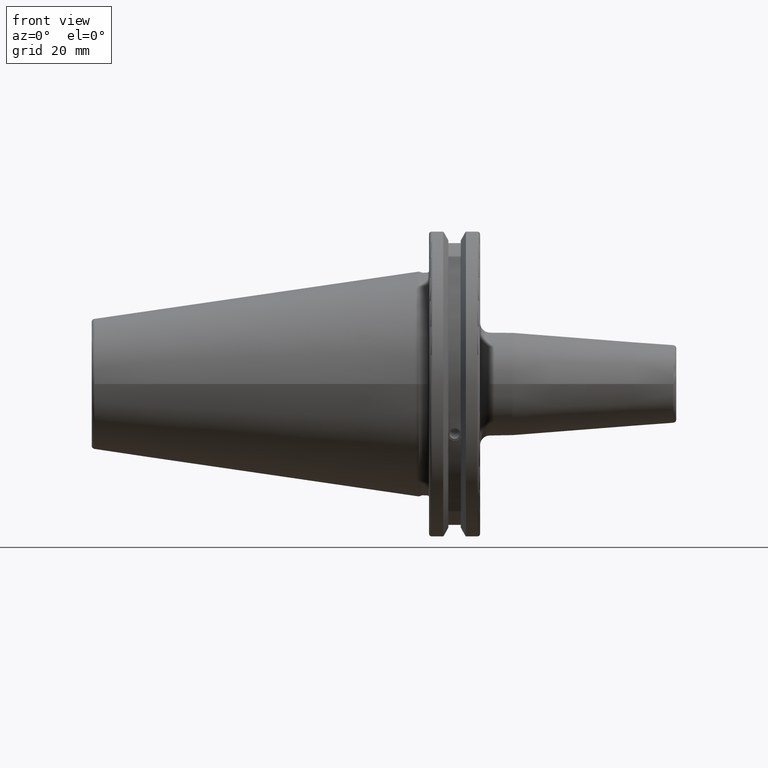
[diagram: clean part render]
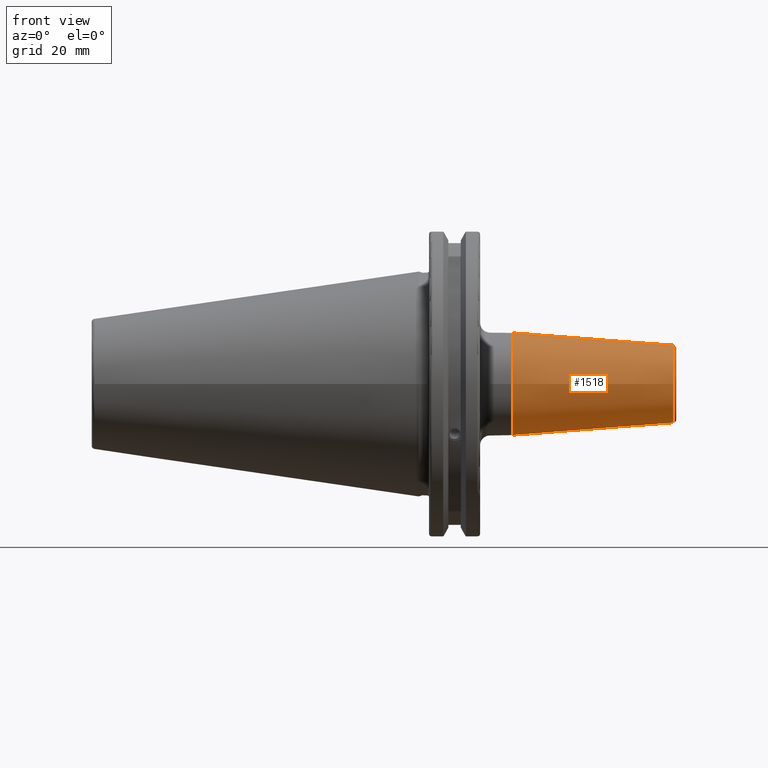
[diagram: same view with one face highlighted and labeled with its STEP entity id]
A machine part, front view. The second image highlights one B-rep face of the part: STEP entity #1518.
In plain terms, the highlighted conical surface has half-angle 4.5 deg.
Its self-contained STEP definition (entity closure, byte-faithful):
#179=FACE_OUTER_BOUND('',#272,.T.);
#272=EDGE_LOOP('',(#1068,#1069,#1070,#1071,#1072));
#378=LINE('',#2286,#474);
#474=VECTOR('',#1854,14.);
#576=CIRCLE('',#1645,12.0725268420749);
#577=CIRCLE('',#1646,12.0725268420749);
#578=CIRCLE('',#1648,16.);
#656=VERTEX_POINT('',#2279);
#657=VERTEX_POINT('',#2281);
#658=VERTEX_POINT('',#2285);
#818=EDGE_CURVE('',#656,#657,#576,.T.);
#819=EDGE_CURVE('',#657,#656,#577,.T.);
#820=EDGE_CURVE('',#657,#658,#378,.T.);
#821=EDGE_CURVE('',#658,#658,#578,.T.);
#1068=ORIENTED_EDGE('',*,*,#819,.F.);
#1069=ORIENTED_EDGE('',*,*,#820,.T.);
#1070=ORIENTED_EDGE('',*,*,#821,.T.);
#1071=ORIENTED_EDGE('',*,*,#820,.F.);
#1072=ORIENTED_EDGE('',*,*,#818,.F.);
#1496=CONICAL_SURFACE('',#1647,14.,0.0785398163397453);
#1518=ADVANCED_FACE('',(#179),#1496,.T.);
#1645=AXIS2_PLACEMENT_3D('',#2282,#1848,#1849);
#1646=AXIS2_PLACEMENT_3D('',#2283,#1850,#1851);
#1647=AXIS2_PLACEMENT_3D('',#2284,#1852,#1853);
#1648=AXIS2_PLACEMENT_3D('',#2287,#1855,#1856);
#1848=DIRECTION('center_axis',(1.,0.,0.));
#1849=DIRECTION('ref_axis',(0.,-1.,3.06161699786838E-17));
#1850=DIRECTION('center_axis',(1.,0.,0.));
#1851=DIRECTION('ref_axis',(0.,-1.,3.06161699786838E-17));
#1852=DIRECTION('center_axis',(-1.,0.,0.));
#1853=DIRECTION('ref_axis',(0.,1.,0.));
#1854=DIRECTION('',(-0.996917333733128,-0.0784590957278454,-9.60846804471016E-18));
#1855=DIRECTION('center_axis',(1.,0.,0.));
#1856=DIRECTION('ref_axis',(0.,0.,-1.));
#2279=CARTESIAN_POINT('',(79.0784590957279,-1.47845813547676E-15,12.0725268420749));
#2281=CARTESIAN_POINT('',(79.0784590957279,-12.0725268420749,-1.47845813547676E-15));
#2282=CARTESIAN_POINT('Origin',(79.0784590957279,0.,-1.84807266934594E-15));
#2283=CARTESIAN_POINT('Origin',(79.0784590957279,0.,-1.84807266934594E-15));
#2284=CARTESIAN_POINT('Origin',(54.5875905276507,0.,0.));
#2285=CARTESIAN_POINT('',(29.1751810553015,-16.,-1.95943487863577E-15));
#2286=CARTESIAN_POINT('',(54.5875905276507,-14.,-1.71450551880629E-15));
#2287=CARTESIAN_POINT('Origin',(29.1751810553015,0.,0.));